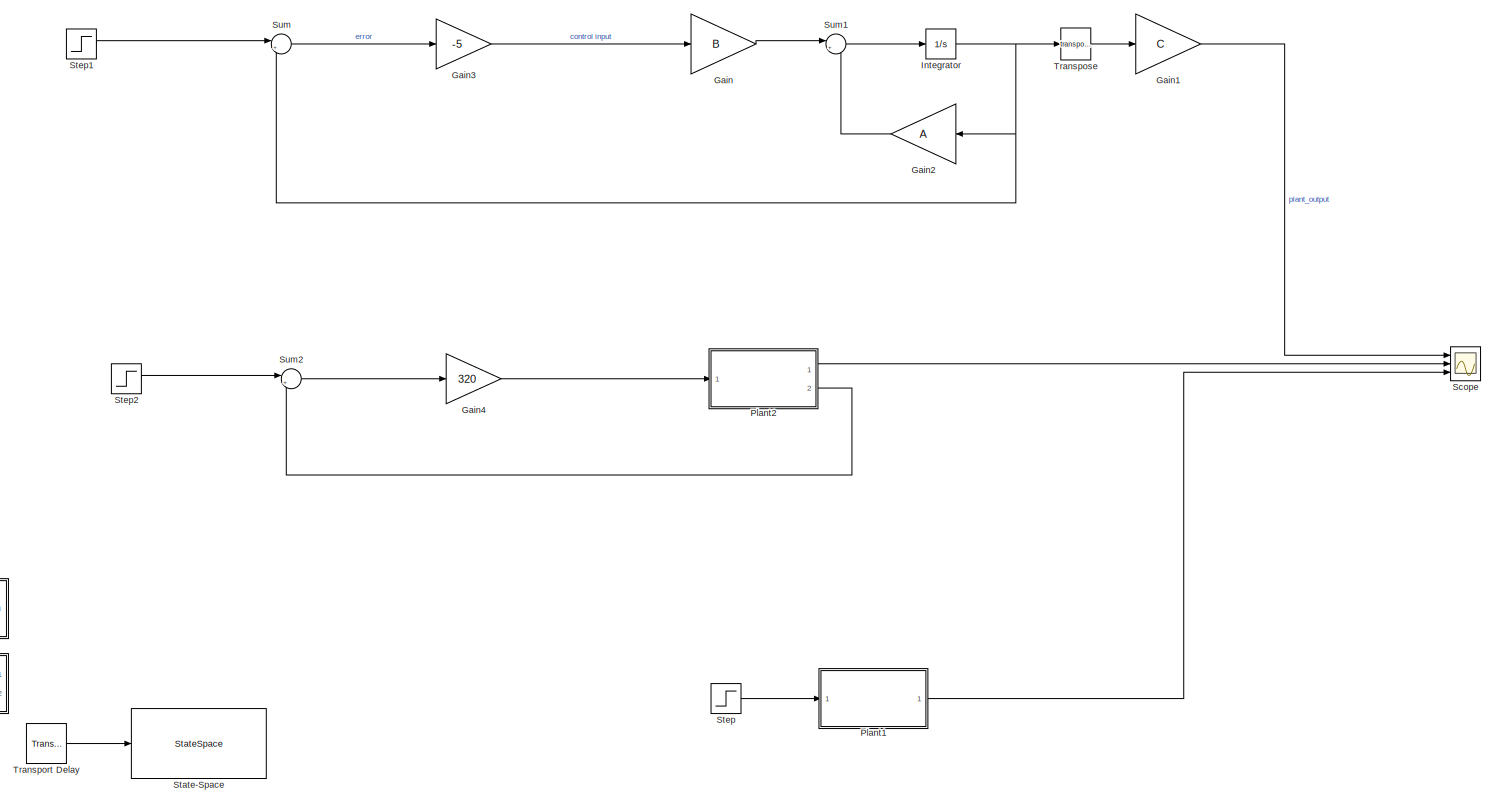
[diagram: root canvas - part 1/2, most of the canvas]
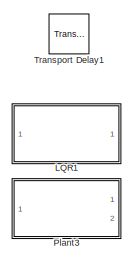
[diagram: root canvas - part 2/2, bottom left region]
MODEL slx_7b3895323972
KIND model
CONFIG AbsTol = auto
CONFIG EnableMultiTasking = off
CONFIG FixedStep = auto
CONFIG MaxStep = auto
CONFIG MinStep = auto
CONFIG RelTol = 1e-3
CONFIG SampleTimeConstraint = Unconstrained
CONFIG Solver = VariableStepAuto
CONFIG SolverName = VariableStepAuto
CONFIG StartTime = 0.0
CONFIG StopTime = 15
BLOCK [Gain] Gain
  Commented = on
  Gain = B
  Multiplication = Matrix(u*K)
  OutDataTypeStr = Inherit: Inherit via internal rule
  ParamDataTypeStr = Inherit: Inherit via internal rule
  SaturateOnIntegerOverflow = off
BLOCK [Gain] Gain1
  Commented = on
  Gain = C
  Multiplication = Matrix(u*K)
  OutDataTypeStr = Inherit: Inherit via internal rule
  ParamDataTypeStr = Inherit: Inherit via internal rule
  SaturateOnIntegerOverflow = off
BLOCK [Gain] Gain2
  Commented = on
  Gain = A
  Multiplication = Matrix(u*K)
  OutDataTypeStr = Inherit: Inherit via internal rule
  ParamDataTypeStr = Inherit: Inherit via internal rule
  SaturateOnIntegerOverflow = off
BLOCK [Gain] Gain3
  Commented = on
  Gain = -5
  OutDataTypeStr = Inherit: Inherit via internal rule
  ParamDataTypeStr = Inherit: Inherit via internal rule
  SaturateOnIntegerOverflow = off
BLOCK [Gain] Gain4
  Gain = 320
  OutDataTypeStr = Inherit: Inherit via internal rule
  ParamDataTypeStr = Inherit: Inherit via internal rule
  SaturateOnIntegerOverflow = off
BLOCK [Integrator] Integrator
  Commented = on
  Ports = [1, 1]
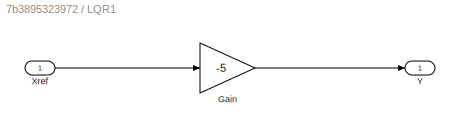
BLOCK [SubSystem] LQR1
  Commented = on
  Ports = [1, 1]
  RequestExecContextInheritance = off
BLOCK [Gain] LQR1/Gain
  Gain = -5
  OutDataTypeStr = Inherit: Inherit via internal rule
  ParamDataTypeStr = Inherit: Inherit via internal rule
  SaturateOnIntegerOverflow = off
BLOCK [Inport] LQR1/Xref
  IconDisplay = Port number
BLOCK [Outport] LQR1/Y
  IconDisplay = Port number
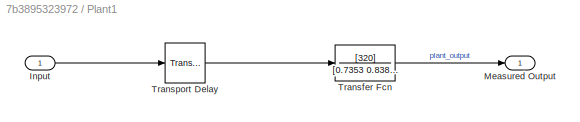
BLOCK [SubSystem] Plant1
  Ports = [1, 1]
  RequestExecContextInheritance = off
BLOCK [Inport] Plant1/Input
  IconDisplay = Port number
BLOCK [Outport] Plant1/Measured Output
  IconDisplay = Port number
BLOCK [TransferFcn] Plant1/Transfer Fcn
  Denominator = [0.7353 0.8386 1]
  Numerator = [320]
BLOCK [TransportDelay] Plant1/Transport Delay
  DelayTime = 0.3
  Ports = [1, 1]
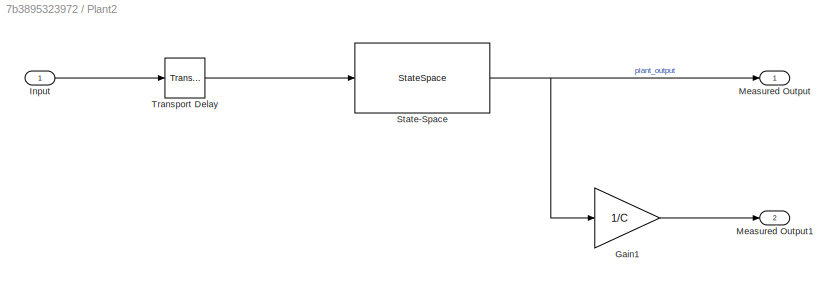
BLOCK [SubSystem] Plant2
  Ports = [1, 2]
  RequestExecContextInheritance = off
BLOCK [Gain] Plant2/Gain1
  Gain = 1/C
  Multiplication = Matrix(u*K)
  OutDataTypeStr = Inherit: Inherit via internal rule
  ParamDataTypeStr = Inherit: Inherit via internal rule
  SaturateOnIntegerOverflow = off
BLOCK [Inport] Plant2/Input
  IconDisplay = Port number
BLOCK [Outport] Plant2/Measured Output
  IconDisplay = Port number
BLOCK [Outport] Plant2/Measured Output1
  IconDisplay = Port number
  Port = 2
BLOCK [StateSpace] Plant2/State-Space
  A = A
  B = B
  C = C
  D = 0
  InitialCondition = 0
  Ports = [1, 1]
BLOCK [TransportDelay] Plant2/Transport Delay
  DelayTime = 0.3
  Ports = [1, 1]
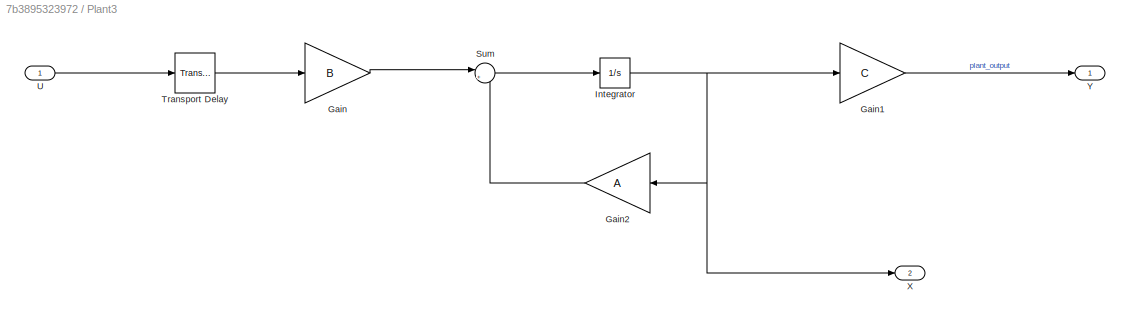
BLOCK [SubSystem] Plant3
  Commented = on
  Ports = [1, 2]
  RequestExecContextInheritance = off
BLOCK [Gain] Plant3/Gain
  Gain = B
  OutDataTypeStr = Inherit: Inherit via internal rule
  ParamDataTypeStr = Inherit: Inherit via internal rule
  SaturateOnIntegerOverflow = off
BLOCK [Gain] Plant3/Gain1
  Gain = C
  OutDataTypeStr = Inherit: Inherit via internal rule
  ParamDataTypeStr = Inherit: Inherit via internal rule
  SaturateOnIntegerOverflow = off
BLOCK [Gain] Plant3/Gain2
  Gain = A
  OutDataTypeStr = Inherit: Inherit via internal rule
  ParamDataTypeStr = Inherit: Inherit via internal rule
  SaturateOnIntegerOverflow = off
BLOCK [Integrator] Plant3/Integrator
  Ports = [1, 1]
BLOCK [Sum] Plant3/Sum
  IconShape = round
  InputSameDT = off
  Inputs = |+-
  OutDataTypeStr = Inherit: Inherit via internal rule
  Ports = [2, 1]
  SaturateOnIntegerOverflow = off
BLOCK [TransportDelay] Plant3/Transport Delay
  DelayTime = 0.3
  Ports = [1, 1]
BLOCK [Inport] Plant3/U
  IconDisplay = Port number
BLOCK [Outport] Plant3/X
  IconDisplay = Port number
  Port = 2
BLOCK [Outport] Plant3/Y
  IconDisplay = Port number
BLOCK [Scope] Scope
  Floating = off
  NumInputPorts = 3
  Ports = [3]
  ScopeSpecificationString = Simulink.scopes.TimeScopeBlockCfg('CurrentConfiguration', extmgr.ConfigurationSet(extmgr.Configuration('Core','General UI',true),extmgr.Configuration('Core','Source UI',true),extmgr.Configuration('Sources','WiredSimulink',true),extmgr.Configuration('Visuals','Time Domain',true,'SerializedDisplays',{struct('MinYLimReal','-46.83481','MaxYLimReal','421.51333','YLabelReal','','MinYLimMag','0.00000','M...<+1392ch>
BLOCK [StateSpace] State-Space
  A = A
  B = B
  C = C
  Commented = on
  D = 0
  InitialCondition = 0
  Ports = [1, 1]
BLOCK [Step] Step
  SampleTime = 0
BLOCK [Step] Step1
  Commented = on
  SampleTime = 0
BLOCK [Step] Step2
  SampleTime = 0
BLOCK [Sum] Sum
  Commented = on
  IconShape = round
  InputSameDT = off
  Inputs = |+-
  OutDataTypeStr = Inherit: Inherit via internal rule
  Ports = [2, 1]
  SaturateOnIntegerOverflow = off
BLOCK [Sum] Sum1
  Commented = on
  IconShape = round
  InputSameDT = off
  Inputs = |+-
  OutDataTypeStr = Inherit: Inherit via internal rule
  Ports = [2, 1]
  SaturateOnIntegerOverflow = off
BLOCK [Sum] Sum2
  IconShape = round
  InputSameDT = off
  Inputs = |+-
  OutDataTypeStr = Inherit: Inherit via internal rule
  Ports = [2, 1]
  SaturateOnIntegerOverflow = off
BLOCK [TransportDelay] Transport Delay
  Commented = on
  DelayTime = 0.3
  Ports = [1, 1]
BLOCK [TransportDelay] Transport Delay1
  Commented = on
  DelayTime = 0.3
  Ports = [1, 1]
BLOCK [Math] Transpose
  Commented = on
  Operator = transpose
  Ports = [1, 1]
LINE Gain1:1 -> Scope:1
LINE Gain2:1 -> Sum1:2
LINE Gain3:1 -> Gain:1
LINE Gain4:1 -> Plant2:1
LINE Gain:1 -> Sum1:1
NET Integrator:1 -> Gain2:1, Sum:2, Transpose:1
LINE LQR1/Gain:1 -> LQR1/Y:1
LINE LQR1/Xref:1 -> LQR1/Gain:1
LINE Plant1/Input:1 -> Plant1/Transport Delay:1
LINE Plant1/Transfer Fcn:1 -> Plant1/Measured Output:1
LINE Plant1/Transport Delay:1 -> Plant1/Transfer Fcn:1
LINE Plant1:1 -> Scope:3
LINE Plant2/Gain1:1 -> Plant2/Measured Output1:1
LINE Plant2/Input:1 -> Plant2/Transport Delay:1
NET Plant2/State-Space:1 -> Plant2/Gain1:1, Plant2/Measured Output:1
LINE Plant2/Transport Delay:1 -> Plant2/State-Space:1
LINE Plant2:1 -> Scope:2
LINE Plant2:2 -> Sum2:2
LINE Plant3/Gain1:1 -> Plant3/Y:1
LINE Plant3/Gain2:1 -> Plant3/Sum:2
LINE Plant3/Gain:1 -> Plant3/Sum:1
NET Plant3/Integrator:1 -> Plant3/Gain1:1, Plant3/Gain2:1, Plant3/X:1
LINE Plant3/Sum:1 -> Plant3/Integrator:1
LINE Plant3/Transport Delay:1 -> Plant3/Gain:1
LINE Plant3/U:1 -> Plant3/Transport Delay:1
LINE Step1:1 -> Sum:1
LINE Step2:1 -> Sum2:1
LINE Step:1 -> Plant1:1
LINE Sum1:1 -> Integrator:1
LINE Sum2:1 -> Gain4:1
LINE Sum:1 -> Gain3:1
LINE Transport Delay:1 -> State-Space:1
LINE Transpose:1 -> Gain1:1
note: NET lines group one-source signal fan-out (src -> all destinations, sorted); 1:1 wires keep LINE
